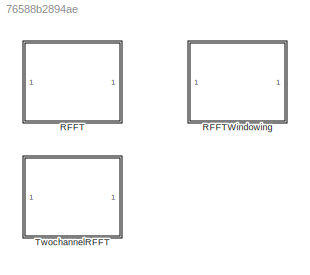
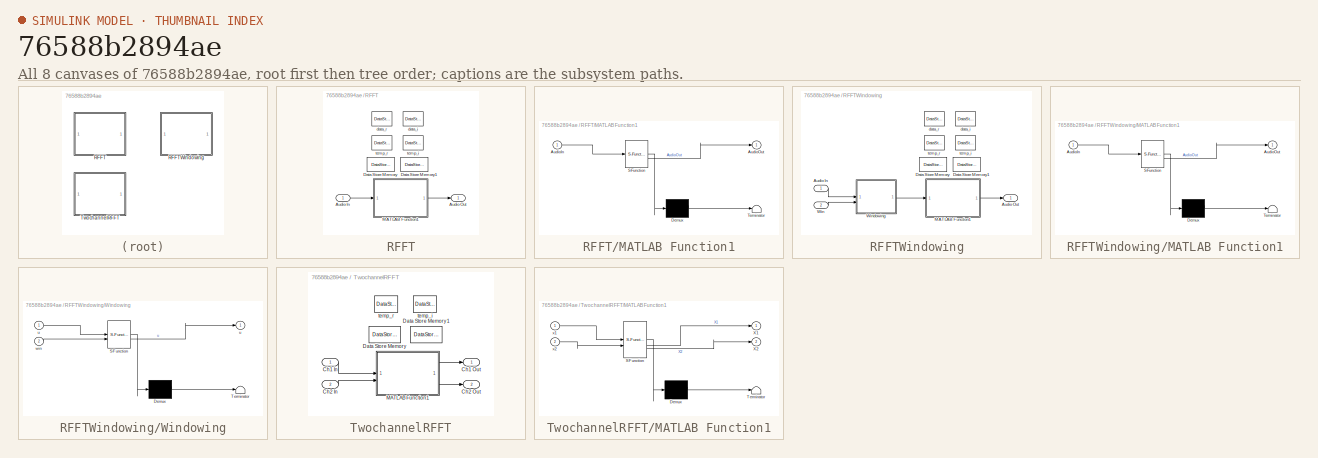
[diagram: thumbnail index - all 8 canvases of the model, root first then tree order]
MODEL slx_76588b2894ae
KIND library
CONFIG AbsTol = auto
CONFIG EnableMultiTasking = off
CONFIG FixedStep = auto
CONFIG MaxStep = auto
CONFIG MinStep = auto
CONFIG RelTol = 1e-3
CONFIG SampleTimeConstraint = Unconstrained
CONFIG SolverName = VariableStepAuto
CONFIG StartTime = 0.0
CONFIG StopTime = 10.0
BLOCK [SubSystem] RFFT
BLOCK [Inport] RFFT/Audio In
BLOCK [Outport] RFFT/Audio Out
  VectorParamsAs1DForOutWhenUnconnected = off
BLOCK [DataStoreMemory] RFFT/Data Store Memory
  DataStoreName = twiddle_r
  OutDataTypeStr = uint32
  ReadBeforeWriteMsg = warning
  ShowAdditionalParam = off
  SignalType = real
  WriteAfterReadMsg = warning
  WriteAfterWriteMsg = warning
BLOCK [DataStoreMemory] RFFT/Data Store Memory1
  DataStoreName = twiddle_i
  OutDataTypeStr = uint32
  ReadBeforeWriteMsg = warning
  ShowAdditionalParam = off
  SignalType = real
  WriteAfterReadMsg = warning
  WriteAfterWriteMsg = warning
BLOCK [SubSystem] RFFT/MATLAB Function1
  ErrorFcn = Stateflow.Translate.translate
  PermitHierarchicalResolution = ExplicitOnly
  SFBlockType = MATLAB Function
  TreatAsAtomicUnit = on
BLOCK [Demux] RFFT/MATLAB Function1/ Demux 
  Outputs = 1
BLOCK [S-Function] RFFT/MATLAB Function1/ SFunction 
  EnableBusSupport = off
  FunctionName = sf_sfun
  Parameters = fftSize,variantSelect
  PortCounts = [1 2]
  SFcnIsStateOwnerBlock = off
  SFunctionDeploymentMode = off
  Tag = Stateflow S-Function 1
BLOCK [Terminator] RFFT/MATLAB Function1/ Terminator 
BLOCK [Inport] RFFT/MATLAB Function1/AudioIn
BLOCK [Outport] RFFT/MATLAB Function1/AudioOut
  VectorParamsAs1DForOutWhenUnconnected = off
BLOCK [DataStoreMemory] RFFT/data_i
  DataStoreName = data_i
  EmbeddedSignalClassName = Blocklib.Signal
  InitialValue = zeros(fftSize,1)
  OutDataTypeStr = single
  ReadBeforeWriteMsg = warning
  ShowAdditionalParam = off
  SignalType = real
  WriteAfterReadMsg = warning
  WriteAfterWriteMsg = warning
BLOCK [DataStoreMemory] RFFT/data_r
  DataStoreName = data_r
  EmbeddedSignalClassName = Blocklib.Signal
  InitialValue = zeros(fftSize,1)
  OutDataTypeStr = single
  ReadBeforeWriteMsg = warning
  ShowAdditionalParam = off
  SignalType = real
  WriteAfterReadMsg = warning
  WriteAfterWriteMsg = warning
BLOCK [DataStoreMemory] RFFT/temp_i
  DataStoreName = temp_i
  EmbeddedSignalClassName = Blocklib.Signal
  InitialValue = zeros(fftSize,1)
  OutDataTypeStr = single
  ReadBeforeWriteMsg = warning
  ShowAdditionalParam = off
  SignalType = real
  WriteAfterReadMsg = warning
  WriteAfterWriteMsg = warning
BLOCK [DataStoreMemory] RFFT/temp_r
  DataStoreName = temp_r
  EmbeddedSignalClassName = Blocklib.Signal
  InitialValue = zeros(fftSize,1)
  OutDataTypeStr = single
  ReadBeforeWriteMsg = warning
  ShowAdditionalParam = off
  SignalType = real
  WriteAfterReadMsg = warning
  WriteAfterWriteMsg = warning
BLOCK [SubSystem] RFFTWindowing
BLOCK [Inport] RFFTWindowing/Audio In
BLOCK [Outport] RFFTWindowing/Audio Out
  VectorParamsAs1DForOutWhenUnconnected = off
BLOCK [DataStoreMemory] RFFTWindowing/Data Store Memory
  DataStoreName = twiddle_r
  OutDataTypeStr = uint32
  ReadBeforeWriteMsg = warning
  ShowAdditionalParam = off
  SignalType = real
  WriteAfterReadMsg = warning
  WriteAfterWriteMsg = warning
BLOCK [DataStoreMemory] RFFTWindowing/Data Store Memory1
  DataStoreName = twiddle_i
  OutDataTypeStr = uint32
  ReadBeforeWriteMsg = warning
  ShowAdditionalParam = off
  SignalType = real
  WriteAfterReadMsg = warning
  WriteAfterWriteMsg = warning
BLOCK [SubSystem] RFFTWindowing/MATLAB Function1
  ErrorFcn = Stateflow.Translate.translate
  PermitHierarchicalResolution = ExplicitOnly
  SFBlockType = MATLAB Function
  TreatAsAtomicUnit = on
BLOCK [Demux] RFFTWindowing/MATLAB Function1/ Demux 
  Outputs = 1
BLOCK [S-Function] RFFTWindowing/MATLAB Function1/ SFunction 
  EnableBusSupport = off
  FunctionName = sf_sfun
  Parameters = fftSize,variantSelect
  PortCounts = [1 2]
  SFcnIsStateOwnerBlock = off
  SFunctionDeploymentMode = off
  Tag = Stateflow S-Function 2
BLOCK [Terminator] RFFTWindowing/MATLAB Function1/ Terminator 
BLOCK [Inport] RFFTWindowing/MATLAB Function1/AudioIn
BLOCK [Outport] RFFTWindowing/MATLAB Function1/AudioOut
  VectorParamsAs1DForOutWhenUnconnected = off
BLOCK [Inport] RFFTWindowing/Win
  Port = 2
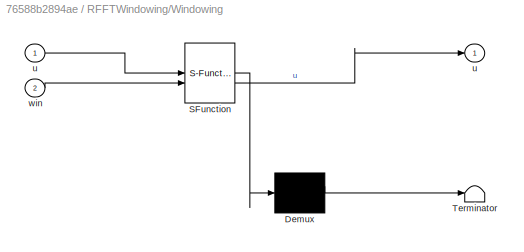
BLOCK [SubSystem] RFFTWindowing/Windowing
  ErrorFcn = Stateflow.Translate.translate
  PermitHierarchicalResolution = ExplicitOnly
  SFBlockType = MATLAB Function
  TreatAsAtomicUnit = on
BLOCK [Demux] RFFTWindowing/Windowing/ Demux 
  Outputs = 1
BLOCK [S-Function] RFFTWindowing/Windowing/ SFunction 
  EnableBusSupport = off
  FunctionName = sf_sfun
  PortCounts = [2 2]
  SFcnIsStateOwnerBlock = off
  SFunctionDeploymentMode = off
  Tag = Stateflow S-Function 5
BLOCK [Terminator] RFFTWindowing/Windowing/ Terminator 
BLOCK [Outport] RFFTWindowing/Windowing/u
  VectorParamsAs1DForOutWhenUnconnected = off
BLOCK [Inport] RFFTWindowing/Windowing/u 
BLOCK [Inport] RFFTWindowing/Windowing/win
  Port = 2
BLOCK [DataStoreMemory] RFFTWindowing/data_i
  DataStoreName = data_i
  EmbeddedSignalClassName = Blocklib.Signal
  InitialValue = zeros(fftSize,1)
  OutDataTypeStr = single
  ReadBeforeWriteMsg = warning
  ShowAdditionalParam = off
  SignalType = real
  WriteAfterReadMsg = warning
  WriteAfterWriteMsg = warning
BLOCK [DataStoreMemory] RFFTWindowing/data_r
  DataStoreName = data_r
  EmbeddedSignalClassName = Blocklib.Signal
  InitialValue = zeros(fftSize,1)
  OutDataTypeStr = single
  ReadBeforeWriteMsg = warning
  ShowAdditionalParam = off
  SignalType = real
  WriteAfterReadMsg = warning
  WriteAfterWriteMsg = warning
BLOCK [DataStoreMemory] RFFTWindowing/temp_i
  DataStoreName = temp_i
  EmbeddedSignalClassName = Blocklib.Signal
  InitialValue = zeros(fftSize,1)
  OutDataTypeStr = single
  ReadBeforeWriteMsg = warning
  ShowAdditionalParam = off
  SignalType = real
  WriteAfterReadMsg = warning
  WriteAfterWriteMsg = warning
BLOCK [DataStoreMemory] RFFTWindowing/temp_r
  DataStoreName = temp_r
  EmbeddedSignalClassName = Blocklib.Signal
  InitialValue = zeros(fftSize,1)
  OutDataTypeStr = single
  ReadBeforeWriteMsg = warning
  ShowAdditionalParam = off
  SignalType = real
  WriteAfterReadMsg = warning
  WriteAfterWriteMsg = warning
BLOCK [SubSystem] TwochannelRFFT
BLOCK [Inport] TwochannelRFFT/Ch1 In
BLOCK [Outport] TwochannelRFFT/Ch1 Out
  VectorParamsAs1DForOutWhenUnconnected = off
BLOCK [Inport] TwochannelRFFT/Ch2 In
  Port = 2
BLOCK [Outport] TwochannelRFFT/Ch2 Out
  Port = 2
  VectorParamsAs1DForOutWhenUnconnected = off
BLOCK [DataStoreMemory] TwochannelRFFT/Data Store Memory
  DataStoreName = twiddle_r
  OutDataTypeStr = uint32
  ReadBeforeWriteMsg = warning
  ShowAdditionalParam = off
  SignalType = real
  WriteAfterReadMsg = warning
  WriteAfterWriteMsg = warning
BLOCK [DataStoreMemory] TwochannelRFFT/Data Store Memory1
  DataStoreName = twiddle_i
  OutDataTypeStr = uint32
  ReadBeforeWriteMsg = warning
  ShowAdditionalParam = off
  SignalType = real
  WriteAfterReadMsg = warning
  WriteAfterWriteMsg = warning
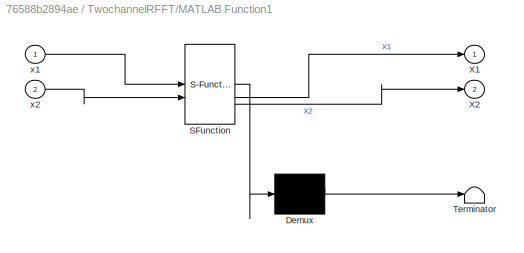
BLOCK [SubSystem] TwochannelRFFT/MATLAB Function1
  ErrorFcn = Stateflow.Translate.translate
  PermitHierarchicalResolution = ExplicitOnly
  SFBlockType = MATLAB Function
  TreatAsAtomicUnit = on
BLOCK [Demux] TwochannelRFFT/MATLAB Function1/ Demux 
  Outputs = 1
BLOCK [S-Function] TwochannelRFFT/MATLAB Function1/ SFunction 
  EnableBusSupport = off
  FunctionName = sf_sfun
  Parameters = fftSize,variantSelect
  PortCounts = [2 3]
  SFcnIsStateOwnerBlock = off
  SFunctionDeploymentMode = off
  Tag = Stateflow S-Function 3
BLOCK [Terminator] TwochannelRFFT/MATLAB Function1/ Terminator 
BLOCK [Outport] TwochannelRFFT/MATLAB Function1/X1
  VectorParamsAs1DForOutWhenUnconnected = off
BLOCK [Outport] TwochannelRFFT/MATLAB Function1/X2
  Port = 2
  VectorParamsAs1DForOutWhenUnconnected = off
BLOCK [Inport] TwochannelRFFT/MATLAB Function1/x1
BLOCK [Inport] TwochannelRFFT/MATLAB Function1/x2
  Port = 2
BLOCK [DataStoreMemory] TwochannelRFFT/temp_i
  DataStoreName = temp_i
  EmbeddedSignalClassName = Blocklib.Signal
  InitialValue = zeros(fftSize,1)
  OutDataTypeStr = single
  ReadBeforeWriteMsg = warning
  ShowAdditionalParam = off
  SignalType = real
  WriteAfterReadMsg = warning
  WriteAfterWriteMsg = warning
BLOCK [DataStoreMemory] TwochannelRFFT/temp_r
  DataStoreName = temp_r
  EmbeddedSignalClassName = Blocklib.Signal
  InitialValue = zeros(fftSize,1)
  OutDataTypeStr = single
  ReadBeforeWriteMsg = warning
  ShowAdditionalParam = off
  SignalType = real
  WriteAfterReadMsg = warning
  WriteAfterWriteMsg = warning
CHART RFFT/MATLAB Function1 states=1 transitions=1
  STATE_LABEL 'eML_blk_kernel()'
  STATE_LABEL 'SCRIPT:\nfunction AudioOut = fftReal(AudioIn, fftSize, variantSelect)   \n\nglobal data_r\nglobal data_i\nglobal temp_r\nglobal temp_i\nglobal twiddle_r\nglobal twiddle_i\n\n[~, numChannels] = size(AudioIn);\nspectrumSize = (fftSize/2) + 1;\n\n% Nullcopy copies type, size, and complexity of input to output\nAudioOut = coder.nullcopy(complex(single(zeros(spectrumSize, numChannels))));\n\n% Set correct data types\nf...<+1684ch>'
CHART RFFTWindowing/MATLAB Function1 states=1 transitions=1
  STATE_LABEL 'eML_blk_kernel()'
  STATE_LABEL 'SCRIPT:\nfunction AudioOut = fftReal(AudioIn, fftSize, variantSelect)   \n\nglobal data_r\nglobal data_i\nglobal temp_r\nglobal temp_i\nglobal twiddle_r\nglobal twiddle_i\n\n[~, numChannels] = size(AudioIn);\nspectrumSize = (fftSize/2) + 1;\n\n% Nullcopy copies type, size, and complexity of input to output\nAudioOut = coder.nullcopy(complex(single(zeros(spectrumSize, numChannels))));\n\n% Set correct data types\nf...<+1684ch>'
CHART TwochannelRFFT/MATLAB Function1 states=1 transitions=1
  STATE_LABEL 'eML_blk_kernel()'
  STATE_LABEL 'SCRIPT:\nfunction [X1, X2] = fftReal(x1, x2, fftSize, variantSelect)   \n\nglobal temp_r\nglobal temp_i\nglobal twiddle_r\nglobal twiddle_i\n\n% Nullcopy copies type, size, and complexity to output\nX1 = coder.nullcopy(complex(single(zeros((fftSize/2) + 1, 1))));\nX2 = coder.nullcopy(complex(single(zeros((fftSize/2) + 1, 1))));\n\n% Set correct data types\nfftSize = uint32(fftSize);\n\n% There are two implementa...<+1886ch>'
CHART RFFTWindowing/Windowing states=1 transitions=1
  STATE_LABEL 'eML_blk_kernel()'
  STATE_LABEL "SCRIPT:\nfunction u = fcn(u, win)\n\n% Get sizes\n[~, numChannels] = size(u);\n\n% Loop since array-vector multiply operation doesn't work here\n% Input/Output have the same variable name for in-place processing\nfor i = 1:numChannels\n    u(:, i) = u(:,i) .* win;\nend\n\nend"
CHART  states=0 transitions=0
CHART  states=0 transitions=0
CHART  states=0 transitions=0
CHART  states=0 transitions=0
